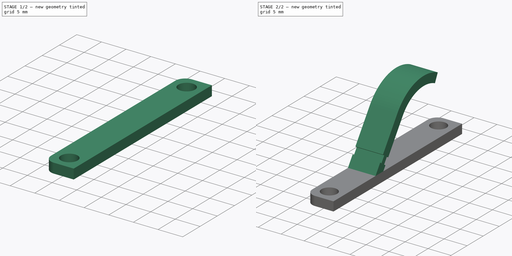
[diagram: build sequence overview — one tinted view per stage of 2, left to right]
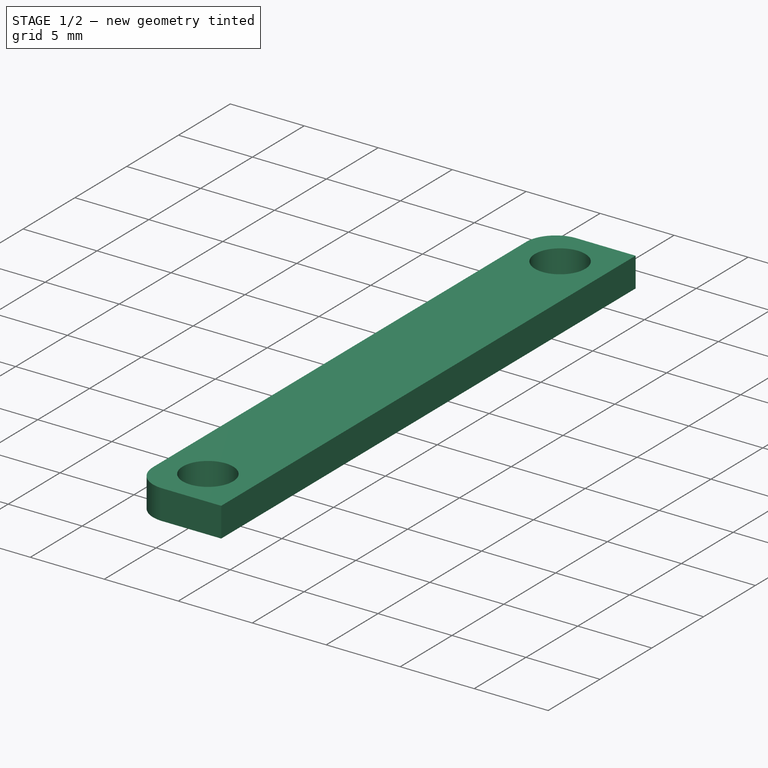
[diagram: stage 1 of 2 — iso view after this stage's code; geometry added in this stage tinted green]
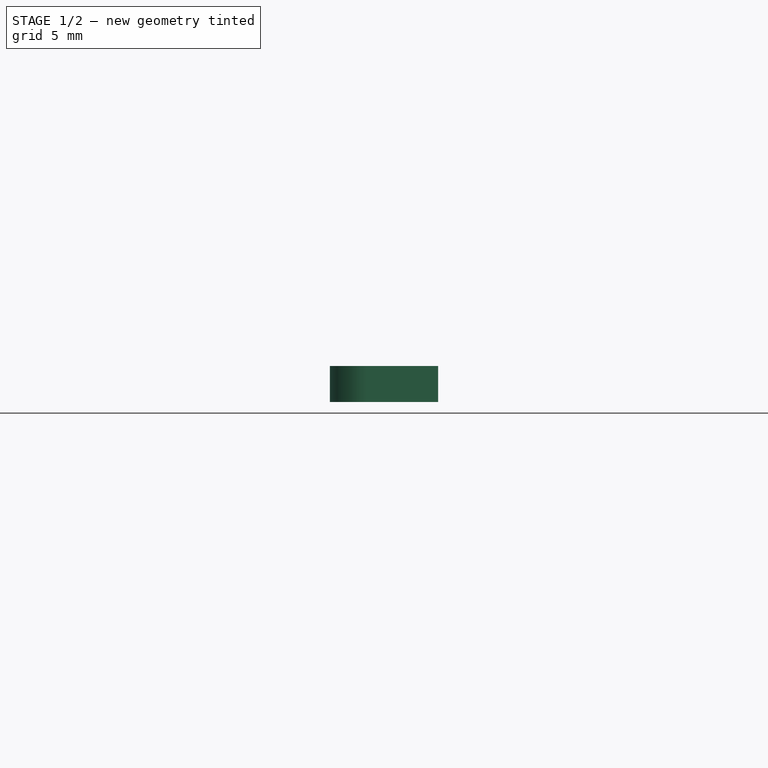
[diagram: stage 1 of 2 — front view after this stage's code; geometry added in this stage tinted green]
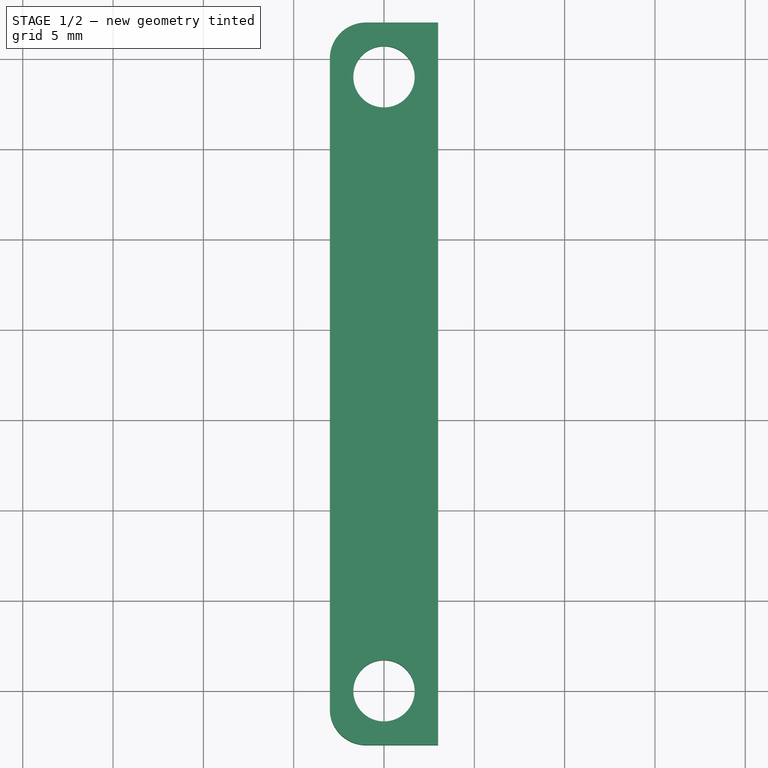
[diagram: stage 1 of 2 — top view after this stage's code; geometry added in this stage tinted green]
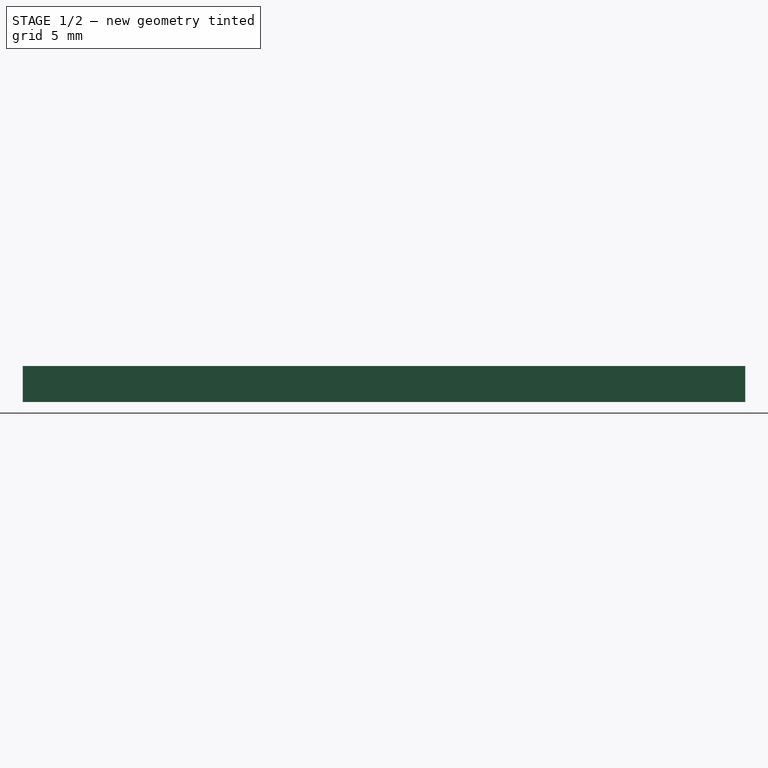
[diagram: stage 1 of 2 — right view after this stage's code; geometry added in this stage tinted green]
FCSTD DOCUMENT  (FreeCAD 0.16R6707 (Git))
Label: Conductivity_Sensor
License: All rights reserved
LicenseURL: http://en.wikipedia.org/wiki/All_rights_reserved
objects: Sketcher::SketchObject×3, PartDesign::Pad×2, PartDesign::Fillet×1, PartDesign::Pocket×1
note: 10 computed .brp shape members not serialized (recipe doc carries the construction recipe); baked Part::Feature solids carry a one-line shape summary decoded from their .brp

FEATURE [Sketcher::SketchObject] Sketch
  sketch-geometry (6):
    g0: Circle CenterX=0 CenterY=0 CenterZ=0 NormalX=0 NormalY=0 NormalZ=1 Radius=1.7
    g1: Circle CenterX=0 CenterY=34 CenterZ=0 NormalX=0 NormalY=0 NormalZ=1 Radius=1.7
    g2: LineSegment StartX=-3 StartY=37 StartZ=0 EndX=3 EndY=37 EndZ=0
    g3: LineSegment StartX=3 StartY=37 StartZ=0 EndX=3 EndY=-3 EndZ=0
    g4: LineSegment StartX=3 StartY=-3 StartZ=0 EndX=-3 EndY=-3 EndZ=0
    g5: LineSegment StartX=-3 StartY=-3 StartZ=0 EndX=-3 EndY=37 EndZ=0
  constraints (18):
    c: PointOnObject(g0,g-2)
    c: PointOnObject(g1,g-2)
    c: Radius(g1) = 1.7
    c: Equal(g0,g1)
    c: Distance(g0,g1) = 34
    c: Coincident(g0,g-1)
    c: Coincident(g2,g3)
    c: Coincident(g3,g4)
    c: Coincident(g4,g5)
    c: Coincident(g5,g2)
    c: Horizontal(g2)
    c: Horizontal(g4)
    c: Vertical(g3)
    c: Vertical(g5)
    c: Distance(g4) = 6
    c: Distance(g3) = 40
    c: DistanceY(g4,g-1) = 3
    c: DistanceX(g4,g-1) = 3
FEATURE [PartDesign::Pad] Pad
  Length = 2
  Length2 = 100
  Sketch = -> Sketch
  Type = 0
FEATURE [PartDesign::Fillet] Fillet
  Base = -> Pad [Edge8,Edge1]
  Radius = 2
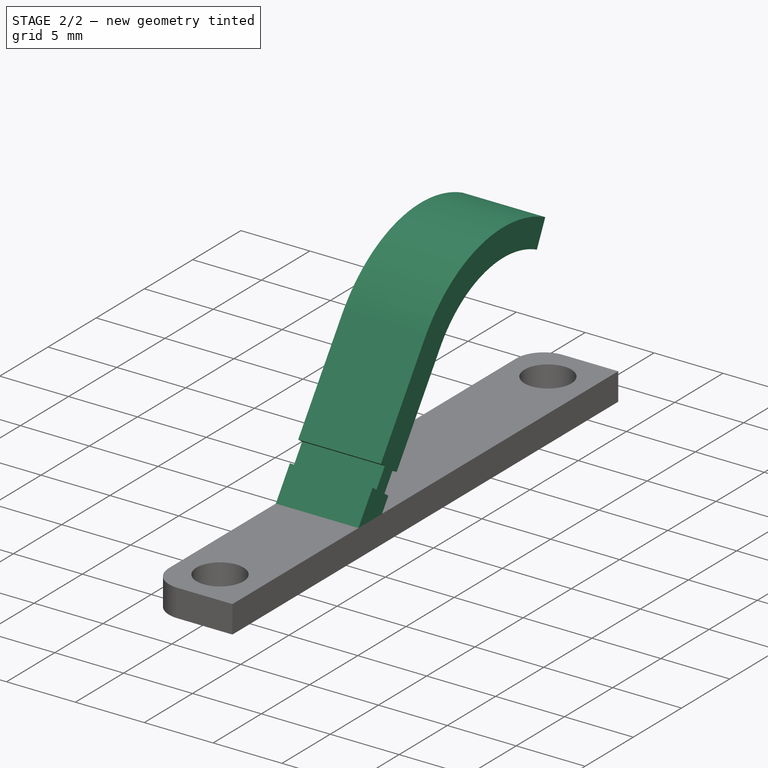
[diagram: stage 2 of 2 — iso view after this stage's code; geometry added in this stage tinted green]
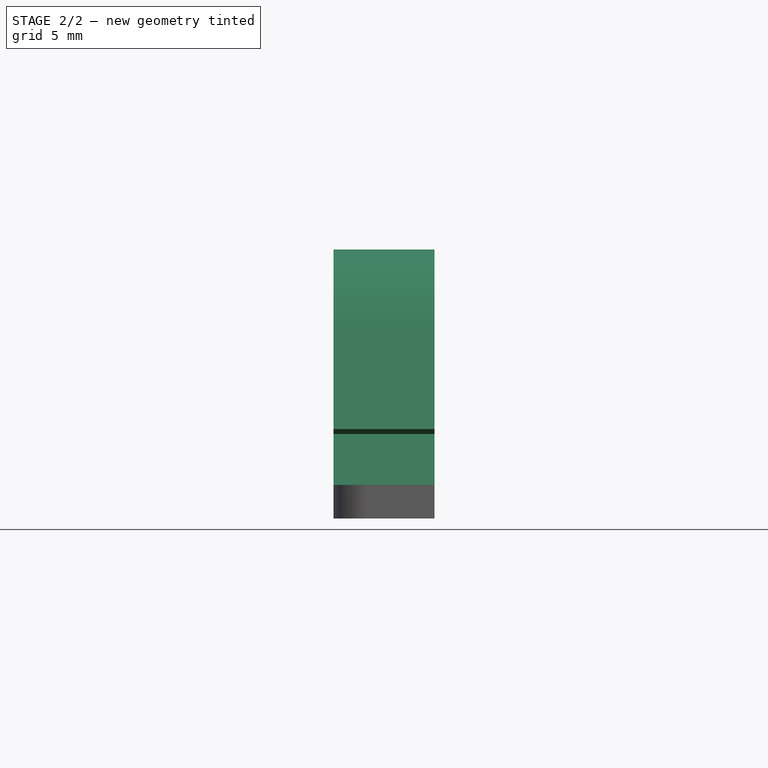
[diagram: stage 2 of 2 — front view after this stage's code; geometry added in this stage tinted green]
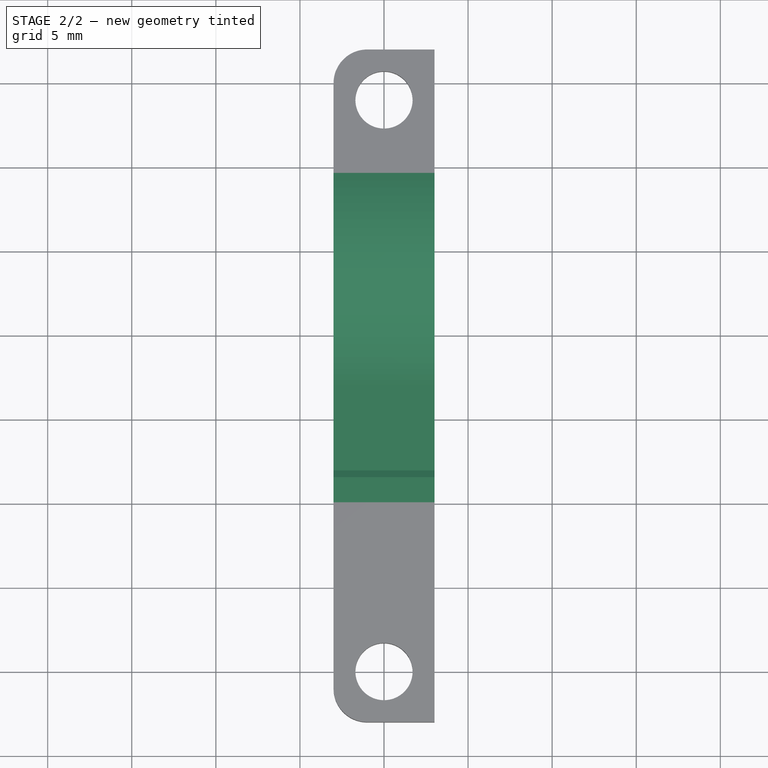
[diagram: stage 2 of 2 — top view after this stage's code; geometry added in this stage tinted green]
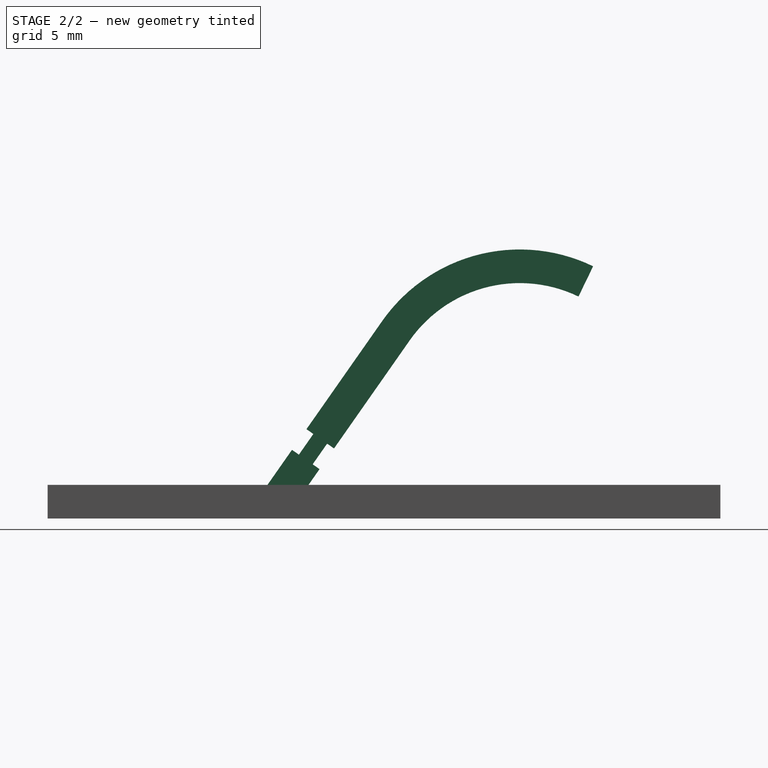
[diagram: stage 2 of 2 — right view after this stage's code; geometry added in this stage tinted green]
FEATURE [Sketcher::SketchObject] Sketch001
  Placement = pos=(3,0,0) rot=(0.57735,0.57735,0.57735;2.0944rad)
  Support = -> Fillet [Face4]
  sketch-geometry (8):
    g0: LineSegment [constr] StartX=0 StartY=15 StartZ=0 EndX=48.4198 EndY=15 EndZ=0
    g1: LineSegment StartX=8.66906 StartY=0 StartZ=0 EndX=11.1106 EndY=0 EndZ=0
    g2: LineSegment StartX=11.1106 StartY=0 StartZ=0 EndX=18.5248 EndY=10.5886 EndZ=0
    g3: LineSegment StartX=8.66906 StartY=0 StartZ=0 EndX=16.8865 EndY=11.7358 EndZ=0
    g4: ArcOfCircle CenterX=25.0781 CenterY=6 CenterZ=0 NormalX=0 NormalY=0 NormalZ=1 Radius=10 StartAngle=1.11977 EndAngle=2.53073
    g5: LineSegment [constr] StartX=25.0781 StartY=6 StartZ=0 EndX=25.0781 EndY=15 EndZ=0
    g6: ArcOfCircle CenterX=25.0781 CenterY=6 CenterZ=0 NormalX=0 NormalY=0 NormalZ=1 Radius=8 StartAngle=1.11977 EndAngle=2.53073
    g7: LineSegment StartX=28.5652 StartY=13.2 StartZ=0 EndX=29.437 EndY=15 EndZ=0
  constraints (24):
    c: PointOnObject(g0,g-2)
    c: Horizontal(g0)
    c: Distance(g-1,g0) = 15
    c: PointOnObject(g1,g-1)
    c: PointOnObject(g1,g-1)
    c: Coincident(g1,g2)
    c: Coincident(g3,g1)
    c: Parallel(g3,g2)
    c: Angle(g2,g-1) = 2.18166
    c: Coincident(g5,g4)
    c: PointOnObject(g5,g0)
    c: Vertical(g5)
    c: Distance(g5) = 9
    c: Coincident(g3,g4)
    c: Tangent(g3,g4)
    c: Radius(g4) = 10
    c: Coincident(g6,g4)
    c: Coincident(g6,g2)
    c: Tangent(g2,g6)
    c: Radius(g6) = 8
    c: Coincident(g7,g4)
    c: Perpendicular(g6,g7)
    c: Coincident(g7,g6)
    c: PointOnObject(g4,g0)
FEATURE [PartDesign::Pad] Pad001
  Length = 6
  Length2 = 100
  Reversed = true
  Sketch = -> Sketch001
  Type = 0
FEATURE [Sketcher::SketchObject] Sketch002
  ExternalGeometry = -> [Pad001]
  Placement = pos=(3,0,0) rot=(0.57735,0.57735,0.57735;2.0944rad)
  Support = -> Pad001 [Face4]
  sketch-geometry (10):
    g0: LineSegment StartX=11.9388 StartY=3.79792 StartZ=0 EndX=10.3005 EndY=4.94508 EndZ=0
    g1: LineSegment StartX=10.3005 StartY=4.94508 StartZ=0 EndX=11.1608 EndY=6.1738 EndZ=0
    g2: LineSegment StartX=11.1608 StartY=6.1738 StartZ=0 EndX=12.7991 EndY=5.02665 EndZ=0
    g3: LineSegment StartX=12.7991 StartY=5.02665 StartZ=0 EndX=11.9388 EndY=3.79792 EndZ=0
    g4: LineSegment StartX=13.6183 StartY=4.45308 StartZ=0 EndX=12.7579 EndY=3.22435 EndZ=0
    g5: LineSegment StartX=12.7579 StartY=3.22435 StartZ=0 EndX=13.5771 EndY=2.65077 EndZ=0
    g6: LineSegment StartX=13.5771 StartY=2.65077 StartZ=0 EndX=14.4375 EndY=3.8795 EndZ=0
    g7: LineSegment StartX=14.4375 StartY=3.8795 StartZ=0 EndX=13.6183 EndY=4.45308 EndZ=0
    g8: GeomPoint [constr] X=14.0279 Y=4.16629 Z=0
    g9: GeomPoint [constr] X=12.3896 Y=5.31344 Z=0
  constraints (24):
    c: Coincident(g0,g1)
    c: Coincident(g1,g2)
    c: Coincident(g2,g3)
    c: Coincident(g3,g0)
    c: Perpendicular(g3,g0)
    c: Perpendicular(g3,g2)
    c: Equal(g2,g0)
    c: Perpendicular(g4,g5) = 1.5708
    c: Perpendicular(g5,g6) = 1.5708
    c: Perpendicular(g6,g7) = 1.5708
    c: Coincident(g7,g4)
    c: Parallel(g4,g3)
    c: Equal(g4,g3)
    c: PointOnObject(g4,g0)
    c: Parallel(g4,g-3)
    c: Distance(g5) = 1
    c: Distance(g0) = 2
    c: Distance(g3) = 1.5
    c: PointOnObject(g8,g-3)
    c: PointOnObject(g9,g-4)
    c: PointOnObject(g9,g2)
    c: PointOnObject(g8,g7)
    c: Distance(g8,g4) = 0.5
    c: Distance(g9,g2) = 0.5
FEATURE [PartDesign::Pocket] Pocket
  Length = 5
  Sketch = -> Sketch002
  Type = 1
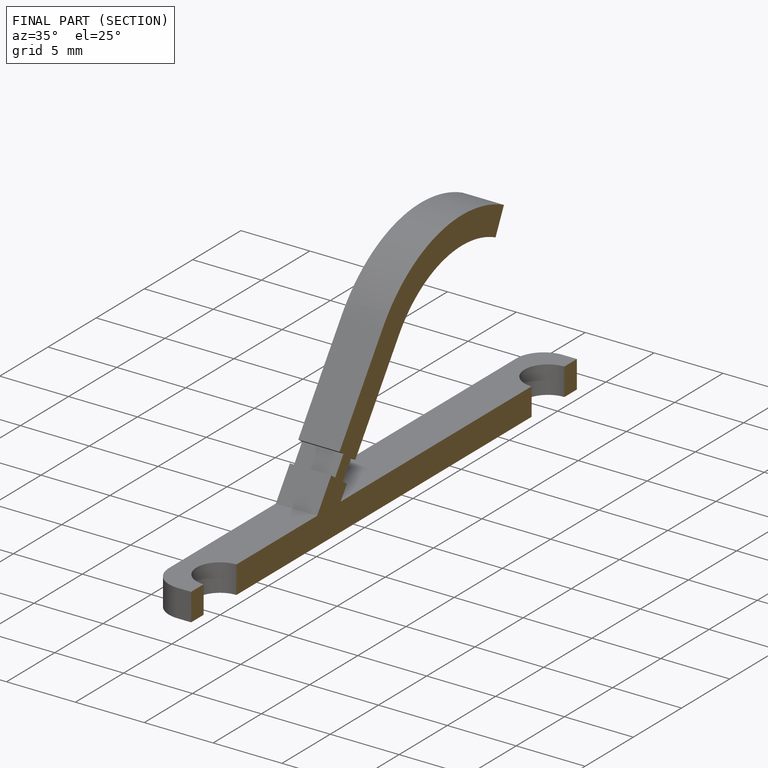
[diagram: finished part — half-section view (interior)]
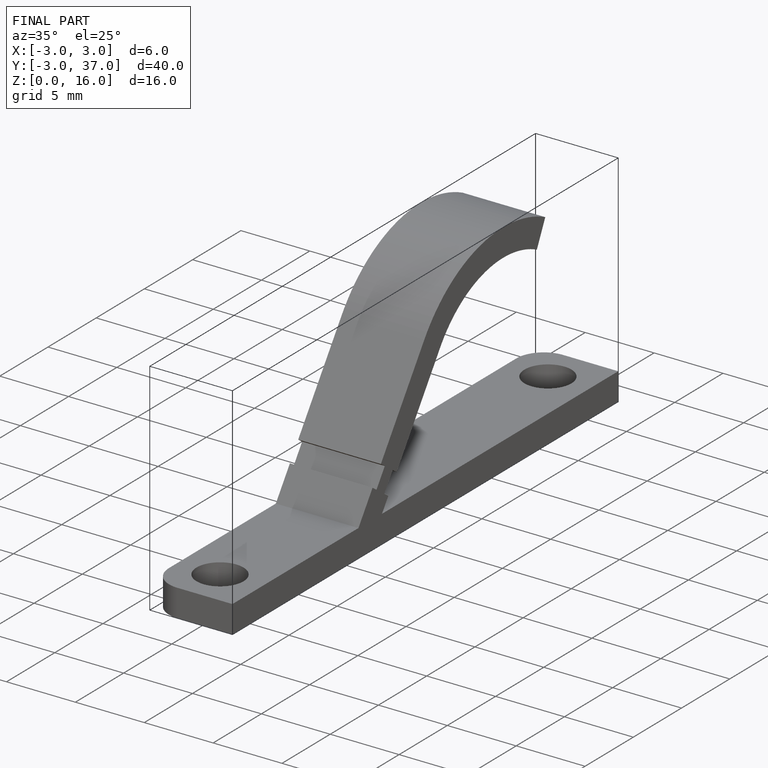
[diagram: finished part — iso view with bounding-box wireframe]
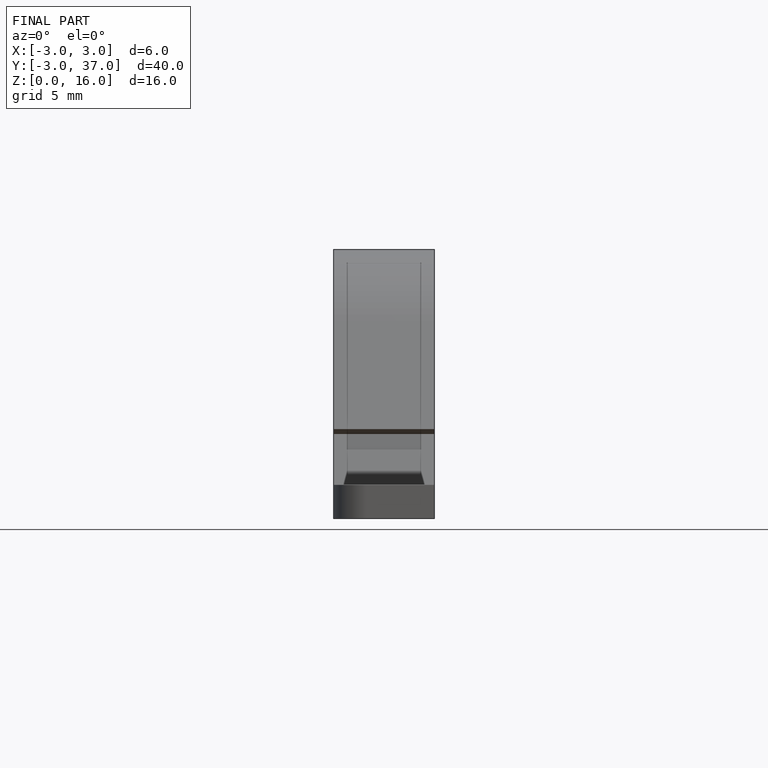
[diagram: finished part — front view with bounding-box wireframe]
